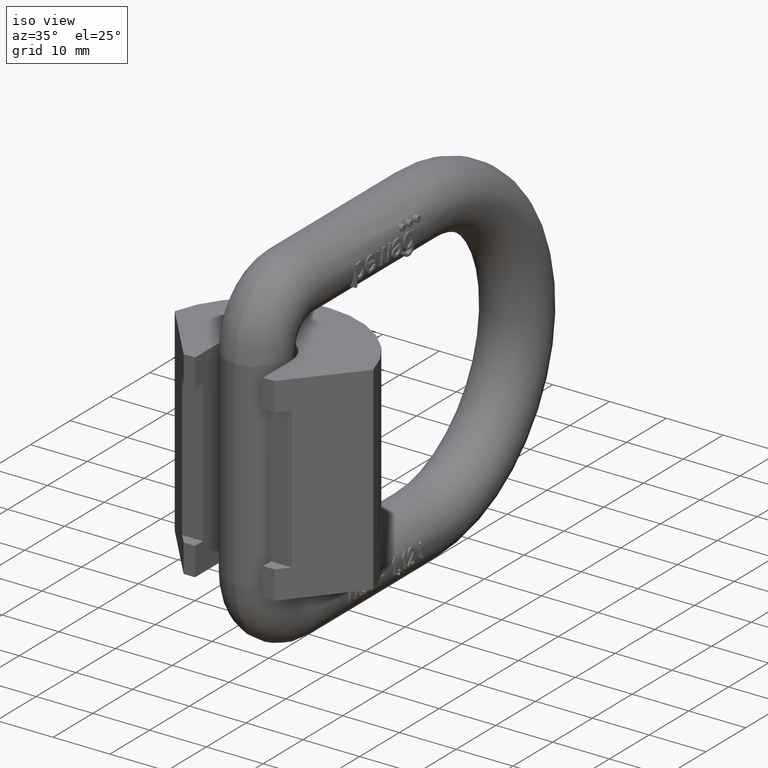
[diagram: clean part render]
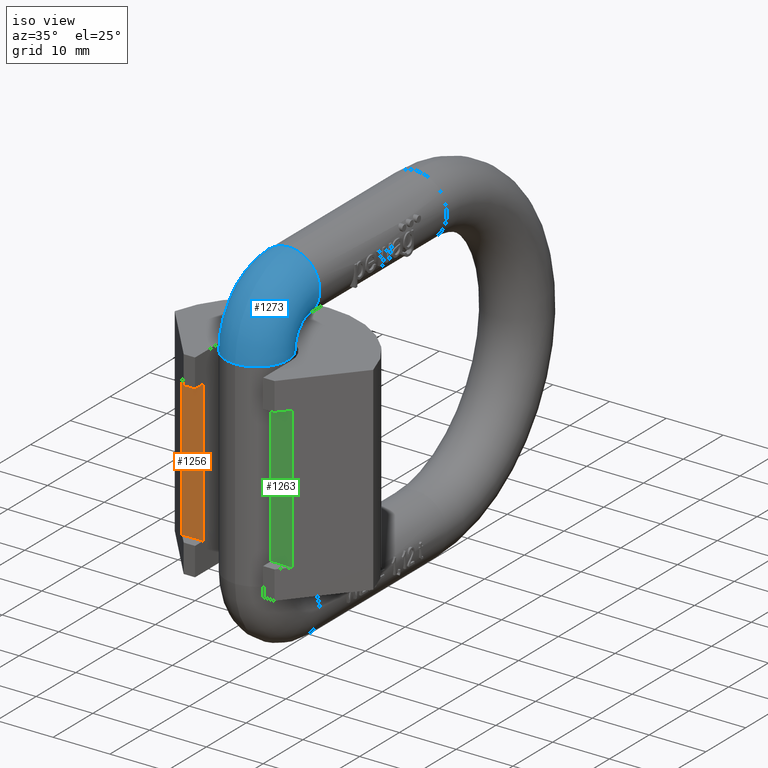
[diagram: same view with three faces highlighted in distinct colors, each labeled with its STEP entity id]
A machine part, iso view with three faces highlighted in distinct colors.
Their STEP definitions:

[orange] entity #1256 — the highlighted planar face has unit normal (0, -1, 0).
#1029=PLANE('',#7770);
#1256=ADVANCED_FACE('',(#1693),#1029,.T.);
#1693=FACE_OUTER_BOUND('',#2091,.T.);
#2091=EDGE_LOOP('',(#2652,#2653,#2654,#2655));
#2652=ORIENTED_EDGE('',*,*,#5584,.F.);
#2653=ORIENTED_EDGE('',*,*,#5585,.T.);
#2654=ORIENTED_EDGE('',*,*,#5586,.T.);
#2655=ORIENTED_EDGE('',*,*,#5587,.T.);
#4844=VERTEX_POINT('',#9524);
#4845=VERTEX_POINT('',#9525);
#4846=VERTEX_POINT('',#9527);
#4847=VERTEX_POINT('',#9529);
#5584=EDGE_CURVE('',#4844,#4845,#6678,.T.);
#5585=EDGE_CURVE('',#4844,#4846,#6679,.T.);
#5586=EDGE_CURVE('',#4846,#4847,#6680,.T.);
#5587=EDGE_CURVE('',#4847,#4845,#6681,.T.);
#6678=LINE('',#9523,#7142);
#6679=LINE('',#9526,#7143);
#6680=LINE('',#9528,#7144);
#6681=LINE('',#9530,#7145);
#7142=VECTOR('',#8155,1.);
#7143=VECTOR('',#8156,1.);
#7144=VECTOR('',#8157,1.);
#7145=VECTOR('',#8158,1.);
#7770=AXIS2_PLACEMENT_3D('',#9531,#8159,#8160);
#8155=DIRECTION('',(1.,1.20466908053945E-16,0.));
#8156=DIRECTION('',(0.,0.,-1.));
#8157=DIRECTION('',(1.,1.20466908053945E-16,0.));
#8158=DIRECTION('',(0.,0.,1.));
#8159=DIRECTION('',(1.20466908053945E-16,-1.,0.));
#8160=DIRECTION('',(1.,1.20563281580388E-16,0.));
#9523=CARTESIAN_POINT('',(18.,2.,12.5));
#9524=CARTESIAN_POINT('',(-9.67819926235456,2.,12.5));
#9525=CARTESIAN_POINT('',(-6.,2.,12.5));
#9526=CARTESIAN_POINT('',(-9.67819926235456,2.,12.5));
#9527=CARTESIAN_POINT('',(-9.67819926235455,1.99999999999999,-12.5));
#9528=CARTESIAN_POINT('',(18.,2.,-12.5));
#9529=CARTESIAN_POINT('',(-6.,2.,-12.5));
#9530=CARTESIAN_POINT('',(-6.,2.,17.5));
#9531=CARTESIAN_POINT('',(18.,2.,12.5));

[blue] entity #1273 — the highlighted toroidal blend (fillet) surface has major radius 8 mm and minor (blend) radius 5.5 mm.
#194=TOROIDAL_SURFACE('',#7888,7.99999999999997,5.5);
#971=FACE_BOUND('',#2146,.T.);
#972=FACE_BOUND('',#2147,.T.);
#1273=ADVANCED_FACE('',(#971,#972),#194,.T.);
#2146=EDGE_LOOP('',(#3050));
#2147=EDGE_LOOP('',(#3051));
#2594=CIRCLE('',#7836,5.5);
#2622=CIRCLE('',#7887,5.5);
#3050=ORIENTED_EDGE('',*,*,#5775,.F.);
#3051=ORIENTED_EDGE('',*,*,#5936,.T.);
#5021=VERTEX_POINT('',#10904);
#5182=VERTEX_POINT('',#12223);
#5775=EDGE_CURVE('',#5021,#5021,#2594,.T.);
#5936=EDGE_CURVE('',#5182,#5182,#2622,.T.);
#7836=AXIS2_PLACEMENT_3D('',#10903,#8354,#8355);
#7887=AXIS2_PLACEMENT_3D('',#12222,#8493,#8494);
#7888=AXIS2_PLACEMENT_3D('',#12224,#8495,#8496);
#8354=DIRECTION('',(0.,1.,3.45313375379021E-15));
#8355=DIRECTION('',(0.,-3.46944695195361E-15,1.));
#8493=DIRECTION('',(0.,-1.17145536458252E-15,1.));
#8494=DIRECTION('',(0.,-1.,-1.26161707343768E-15));
#8495=DIRECTION('',(-1.,0.,0.));
#8496=DIRECTION('',(0.,0.,1.));
#10903=CARTESIAN_POINT('',(0.,14.9999999999999,25.5));
#10904=CARTESIAN_POINT('',(0.,14.9999999999999,31.));
#12222=CARTESIAN_POINT('',(0.,7.,17.5));
#12223=CARTESIAN_POINT('',(0.,1.5,17.5));
#12224=CARTESIAN_POINT('',(0.,15.,17.5));

[green] entity #1263 — the highlighted planar face has unit normal (0, -1, 0).
#1036=PLANE('',#7777);
#1263=ADVANCED_FACE('',(#1700),#1036,.T.);
#1700=FACE_OUTER_BOUND('',#2098,.T.);
#2098=EDGE_LOOP('',(#2680,#2681,#2682,#2683));
#2680=ORIENTED_EDGE('',*,*,#5601,.T.);
#2681=ORIENTED_EDGE('',*,*,#5606,.T.);
#2682=ORIENTED_EDGE('',*,*,#5605,.F.);
#2683=ORIENTED_EDGE('',*,*,#5607,.T.);
#4856=VERTEX_POINT('',#9557);
#4857=VERTEX_POINT('',#9559);
#4858=VERTEX_POINT('',#9563);
#4859=VERTEX_POINT('',#9565);
#5601=EDGE_CURVE('',#4857,#4856,#6695,.T.);
#5605=EDGE_CURVE('',#4859,#4858,#6699,.T.);
#5606=EDGE_CURVE('',#4856,#4858,#6700,.T.);
#5607=EDGE_CURVE('',#4859,#4857,#6701,.T.);
#6695=LINE('',#9558,#7159);
#6699=LINE('',#9566,#7163);
#6700=LINE('',#9568,#7164);
#6701=LINE('',#9569,#7165);
#7159=VECTOR('',#8182,1.);
#7163=VECTOR('',#8188,1.);
#7164=VECTOR('',#8191,1.);
#7165=VECTOR('',#8192,1.);
#7777=AXIS2_PLACEMENT_3D('',#9570,#8193,#8194);
#8182=DIRECTION('',(1.,1.20466908053945E-16,0.));
#8188=DIRECTION('',(1.,1.20466908053945E-16,0.));
#8191=DIRECTION('',(0.,0.,1.));
#8192=DIRECTION('',(0.,0.,-1.));
#8193=DIRECTION('',(1.20466908053945E-16,-1.,0.));
#8194=DIRECTION('',(1.,1.20563281580388E-16,0.));
#9557=CARTESIAN_POINT('',(9.67819926235456,2.,-12.5));
#9558=CARTESIAN_POINT('',(18.,2.,-12.5));
#9559=CARTESIAN_POINT('',(6.,2.,-12.5));
#9563=CARTESIAN_POINT('',(9.67819926235456,2.,12.5));
#9565=CARTESIAN_POINT('',(6.,2.,12.5));
#9566=CARTESIAN_POINT('',(18.,2.,12.5));
#9568=CARTESIAN_POINT('',(9.67819926235456,2.,12.5));
#9569=CARTESIAN_POINT('',(6.,2.,17.5));
#9570=CARTESIAN_POINT('',(18.,2.,12.5));